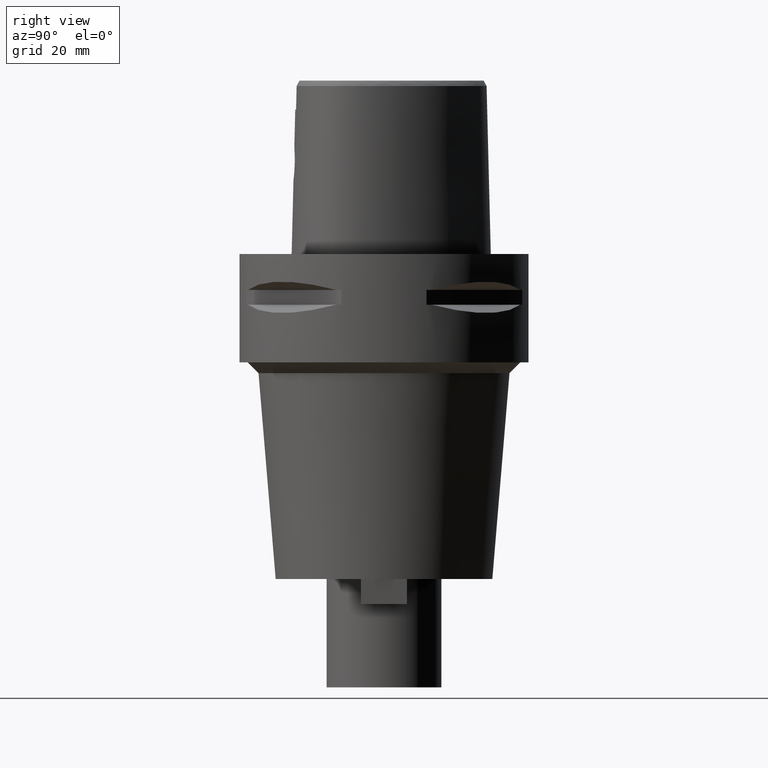
[diagram: clean part render]
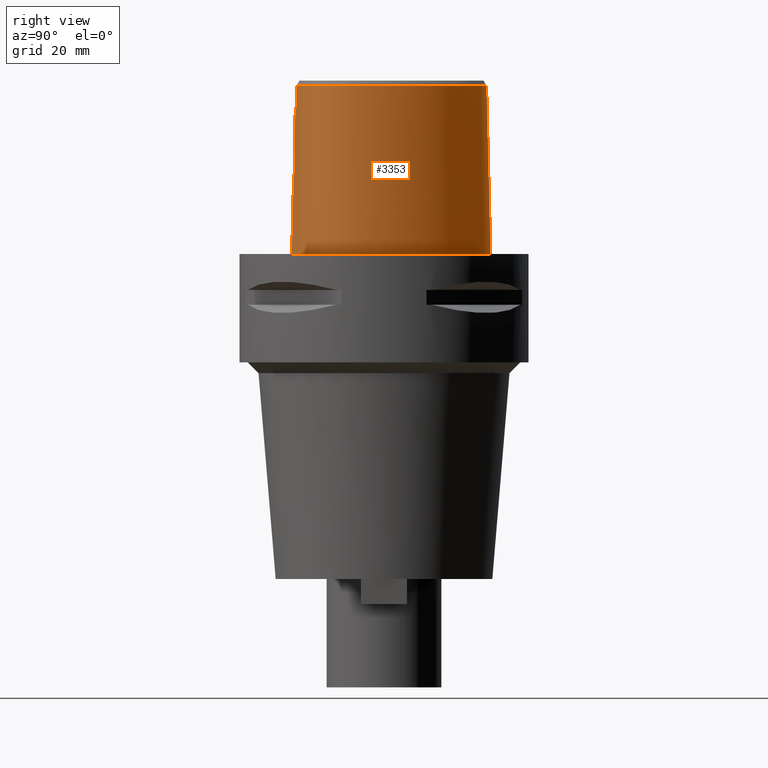
[diagram: same view with one face highlighted and labeled with its STEP entity id]
A machine part, right view. The second image highlights one B-rep face of the part: STEP entity #3353.
In plain terms, the highlighted face is a freeform B-spline surface patch.
Its self-contained STEP definition (entity closure, byte-faithful):
#130=CARTESIAN_POINT('',(4.472216720977E0,-2.420009030094E1,4.652069014669E1));
#140=CARTESIAN_POINT('',(-1.300493308120E-11,2.841206021535E1,
4.652071719451E1));
#141=CARTESIAN_POINT('',(4.537490213628E-1,2.841206021535E1,4.652071719450E1));
#142=CARTESIAN_POINT('',(1.359739333895E0,2.836561700399E1,4.652068492419E1));
#143=CARTESIAN_POINT('',(2.798416793316E0,2.814377461717E1,4.652072027706E1));
#144=CARTESIAN_POINT('',(4.307887639499E0,2.775346072855E1,4.652071723335E1));
#145=CARTESIAN_POINT('',(5.924869929827E0,2.716263044308E1,4.652072183319E1));
#146=CARTESIAN_POINT('',(7.606376726197E0,2.635846393509E1,4.652071705165E1));
#147=CARTESIAN_POINT('',(9.250372014650E0,2.538962292784E1,4.652072163652E1));
#148=CARTESIAN_POINT('',(1.088560491412E1,2.424857119092E1,4.652071905169E1));
#149=CARTESIAN_POINT('',(1.252185350330E1,2.292325989186E1,4.652072481974E1));
#150=CARTESIAN_POINT('',(1.417180752101E1,2.139586755219E1,4.652071606140E1));
#151=CARTESIAN_POINT('',(1.592374388296E1,1.954881059155E1,4.652071986469E1));
#152=CARTESIAN_POINT('',(1.778068836460E1,1.730764528431E1,4.652070834577E1));
#153=CARTESIAN_POINT('',(1.973862266516E1,1.456620010831E1,4.652071797701E1));
#154=CARTESIAN_POINT('',(2.161193685354E1,1.146764016300E1,4.652071565102E1));
#155=CARTESIAN_POINT('',(2.320306411494E1,8.305545696281E0,4.652071754653E1));
#156=CARTESIAN_POINT('',(2.439273893495E1,5.429171501733E0,4.652072067189E1));
#157=CARTESIAN_POINT('',(2.525400230633E1,2.867289822812E0,4.652071708657E1));
#158=CARTESIAN_POINT('',(2.587058895892E1,5.356714346136E-1,4.652071524526E1));
#159=CARTESIAN_POINT('',(2.628986553808E1,-1.616722991159E0,4.652071995117E1));
#160=CARTESIAN_POINT('',(2.654226288817E1,-3.645874536726E0,4.652071251050E1));
#161=CARTESIAN_POINT('',(2.664069955943E1,-5.588996615923E0,4.652072284657E1));
#162=CARTESIAN_POINT('',(2.658231647953E1,-7.487839499206E0,4.652071787861E1));
#163=CARTESIAN_POINT('',(2.636242864393E1,-9.277335918253E0,4.652071674685E1));
#164=CARTESIAN_POINT('',(2.600546970369E1,-1.087971050716E1,4.652072175201E1));
#165=CARTESIAN_POINT('',(2.553598679842E1,-1.230721928929E1,4.652071313457E1));
#166=CARTESIAN_POINT('',(2.496411661943E1,-1.359437090237E1,4.652075888368E1));
#167=CARTESIAN_POINT('',(2.428343664836E1,-1.477858436888E1,4.652070986822E1));
#168=CARTESIAN_POINT('',(2.346248453319E1,-1.591632656551E1,4.652072011288E1));
#169=CARTESIAN_POINT('',(2.246581338304E1,-1.703985358332E1,4.652071692565E1));
#170=CARTESIAN_POINT('',(2.126821125574E1,-1.814765548893E1,4.652072040874E1));
#171=CARTESIAN_POINT('',(1.983956133964E1,-1.923330405129E1,4.652072026418E1));
#172=CARTESIAN_POINT('',(1.823083362510E1,-2.023730442068E1,4.652071810262E1));
#173=CARTESIAN_POINT('',(1.650513375439E1,-2.112762786541E1,4.652071766772E1));
#174=CARTESIAN_POINT('',(1.462294012880E1,-2.192950778602E1,4.652071724727E1));
#175=CARTESIAN_POINT('',(1.256100400051E1,-2.264450389677E1,4.652072051589E1));
#176=CARTESIAN_POINT('',(1.025773522757E1,-2.327676388824E1,4.652070395409E1));
#177=CARTESIAN_POINT('',(7.624517635560E0,-2.381786584128E1,4.652074908391E1));
#178=CARTESIAN_POINT('',(5.565499563370E0,-2.409543509559E1,4.652064983366E1));
#179=CARTESIAN_POINT('',(4.472216720977E0,-2.420009030094E1,4.652069014669E1));
#255=DIRECTION('',(1.388127457203E-9,-2.499239851702E-2,-9.996876412242E-1));
#256=VECTOR('',#255,1.045326522127E1);
#257=CARTESIAN_POINT('',(-1.451045074373E-8,-2.457504746727E1,
4.000000005214E1));
#258=LINE('',#257,#256);
#276=CARTESIAN_POINT('',(-1.778692822600E-12,-2.506378435149E1,2.045E1));
#281=DIRECTION('',(-6.125829354769E-13,-2.499051295404E-2,-9.996876883619E-1));
#282=VECTOR('',#281,2.045638876829E1);
#283=CARTESIAN_POINT('',(-1.778692822600E-12,-2.506378435149E1,2.045E1));
#284=LINE('',#283,#282);
#304=CARTESIAN_POINT('',(-1.430992750353E-11,-2.5575E1,7.197945942986E-14));
#305=CARTESIAN_POINT('',(1.226267310008E0,-2.5575E1,7.197945942986E-14));
#306=CARTESIAN_POINT('',(3.621626679634E0,-2.548420083228E1,
-3.340578337814E-14));
#307=CARTESIAN_POINT('',(7.094522645363E0,-2.509118798312E1,0.E0));
#308=CARTESIAN_POINT('',(1.029320393422E1,-2.447674119434E1,0.E0));
#309=CARTESIAN_POINT('',(1.316830366448E1,-2.368658642280E1,0.E0));
#310=CARTESIAN_POINT('',(1.569756798499E1,-2.276535287200E1,0.E0));
#311=CARTESIAN_POINT('',(1.789001133716E1,-2.175166800221E1,0.E0));
#312=CARTESIAN_POINT('',(1.977188988408E1,-2.067442038523E1,0.E0));
#313=CARTESIAN_POINT('',(2.137528803232E1,-1.955428174846E1,0.E0));
#314=CARTESIAN_POINT('',(2.273475815452E1,-1.840306974533E1,0.E0));
#315=CARTESIAN_POINT('',(2.388112745601E1,-1.722650932174E1,0.E0));
#316=CARTESIAN_POINT('',(2.483875686230E1,-1.602841784064E1,0.E0));
#317=CARTESIAN_POINT('',(2.563594678621E1,-1.479733412336E1,0.E0));
#318=CARTESIAN_POINT('',(2.630231433085E1,-1.349225912510E1,0.E0));
#319=CARTESIAN_POINT('',(2.685985398762E1,-1.206629730907E1,0.E0));
#320=CARTESIAN_POINT('',(2.730580994310E1,-1.048351470006E1,0.E0));
#321=CARTESIAN_POINT('',(2.762257833371E1,-8.731081940864E0,0.E0));
#322=CARTESIAN_POINT('',(2.779074221452E1,-6.781137455186E0,0.E0));
#323=CARTESIAN_POINT('',(2.778224836625E1,-4.611565185275E0,0.E0));
#324=CARTESIAN_POINT('',(2.756318944422E1,-2.204123591672E0,0.E0));
#325=CARTESIAN_POINT('',(2.709515794285E1,4.491411091432E-1,0.E0));
#326=CARTESIAN_POINT('',(2.634085131059E1,3.335346125171E0,0.E0));
#327=CARTESIAN_POINT('',(2.527068452380E1,6.416678834474E0,0.E0));
#328=CARTESIAN_POINT('',(2.387689011732E1,9.615258310560E0,0.E0));
#329=CARTESIAN_POINT('',(2.217741715327E1,1.282851522004E1,0.E0));
#330=CARTESIAN_POINT('',(2.024214261184E1,1.590456751041E1,0.E0));
#331=CARTESIAN_POINT('',(1.816829982132E1,1.870672171589E1,0.E0));
#332=CARTESIAN_POINT('',(1.603485463220E1,2.116984668375E1,0.E0));
#333=CARTESIAN_POINT('',(1.391322503618E1,2.326170700258E1,0.E0));
#334=CARTESIAN_POINT('',(1.185104298907E1,2.498915286116E1,0.E0));
#335=CARTESIAN_POINT('',(9.877468034097E0,2.637866284459E1,0.E0));
#336=CARTESIAN_POINT('',(8.004575549759E0,2.746752065886E1,0.E0));
#337=CARTESIAN_POINT('',(6.233260248055E0,2.829428471163E1,0.E0));
#338=CARTESIAN_POINT('',(4.557437940904E0,2.889428332895E1,0.E0));
#339=CARTESIAN_POINT('',(2.966279271192E0,2.929725777520E1,0.E0));
#340=CARTESIAN_POINT('',(1.450330499919E0,2.952644702213E1,
-3.040012163461E-14));
#341=CARTESIAN_POINT('',(4.765643349690E-1,2.957499999999E1,
6.550315845288E-14));
#342=CARTESIAN_POINT('',(3.442285893376E-11,2.957499999999E1,
6.550315845288E-14));
#347=CARTESIAN_POINT('',(3.442285893376E-11,2.957499999999E1,
6.550315845288E-14));
#385=CARTESIAN_POINT('',(-1.430992750353E-11,-2.5575E1,7.197945942986E-14));
#1048=CARTESIAN_POINT('',(-1.778692822600E-12,-2.506378435149E1,2.045E1));
#1049=CARTESIAN_POINT('',(3.954072385966E-1,-2.506378435149E1,2.045E1));
#1050=CARTESIAN_POINT('',(1.186753459267E0,-2.505127021271E1,2.055377441387E1));
#1051=CARTESIAN_POINT('',(2.293901026105E0,-2.499899038356E1,2.101029884895E1));
#1052=CARTESIAN_POINT('',(3.249199742156E0,-2.492423366302E1,2.174038340004E1));
#1053=CARTESIAN_POINT('',(3.983109891139E0,-2.484333493048E1,2.269399437273E1));
#1054=CARTESIAN_POINT('',(4.444902099457E0,-2.477340454867E1,2.380604644136E1));
#1055=CARTESIAN_POINT('',(4.602189725522E0,-2.472804812745E1,2.499792083744E1));
#1056=CARTESIAN_POINT('',(4.446334752733E0,-2.471346400510E1,2.618704469361E1));
#1057=CARTESIAN_POINT('',(3.988616765538E0,-2.472738510881E1,2.729584248229E1));
#1058=CARTESIAN_POINT('',(3.258671858173E0,-2.476043868878E1,2.825013255838E1));
#1059=CARTESIAN_POINT('',(2.303887962671E0,-2.479896037678E1,2.898443751551E1));
#1060=CARTESIAN_POINT('',(1.191549157684E0,-2.482886762172E1,2.944549741629E1));
#1061=CARTESIAN_POINT('',(3.970274391534E-1,-2.483629963748E1,2.955E1));
#1062=CARTESIAN_POINT('',(1.372734075401E-14,-2.483629963748E1,2.955E1));
#1067=CARTESIAN_POINT('',(4.602926386879E0,-2.435121850030E1,4.000000005215E1));
#1068=CARTESIAN_POINT('',(4.588866899356E0,-2.433440433283E1,4.072434907413E1));
#1069=CARTESIAN_POINT('',(4.559961035626E0,-2.430022594202E1,4.217314077646E1));
#1070=CARTESIAN_POINT('',(4.516394065040E0,-2.424985529238E1,4.434670381198E1));
#1071=CARTESIAN_POINT('',(4.487210999458E0,-2.421685509515E1,4.579599754735E1));
#1072=CARTESIAN_POINT('',(4.472216720977E0,-2.420009030094E1,4.652069014669E1));
#1077=DIRECTION('',(1.019179897105E-12,2.499051293976E-2,-9.996876883622E-1));
#1078=VECTOR('',#1077,4.653525069487E1);
#1079=CARTESIAN_POINT('',(-1.300493308120E-11,2.841206021535E1,
4.652071719451E1));
#1080=LINE('',#1079,#1078);
#1084=CARTESIAN_POINT('',(4.602926386879E0,-2.435121850030E1,4.000000005215E1));
#1085=CARTESIAN_POINT('',(4.092927945188E0,-2.440134254990E1,4.000000005215E1));
#1086=CARTESIAN_POINT('',(3.071957838276E0,-2.448406989328E1,3.999999998262E1));
#1087=CARTESIAN_POINT('',(1.536621703767E0,-2.455890147704E1,3.999999998262E1));
#1088=CARTESIAN_POINT('',(5.124223333400E-1,-2.457504746727E1,
4.000000005214E1));
#1089=CARTESIAN_POINT('',(-1.451045074373E-8,-2.457504746727E1,
4.000000005214E1));
#1094=CARTESIAN_POINT('',(-1.451045074373E-8,-2.457504746727E1,
4.000000005214E1));
#1713=VERTEX_POINT('',#130);
#1714=VERTEX_POINT('',#1067);
#1718=CARTESIAN_POINT('',(-1.300493308120E-11,2.841206021535E1,
4.652071719451E1));
#1719=VERTEX_POINT('',#1718);
#1720=VERTEX_POINT('',#347);
#1721=VERTEX_POINT('',#385);
#1722=VERTEX_POINT('',#1094);
#1723=CARTESIAN_POINT('',(1.372734075387E-14,-2.483629963748E1,2.955E1));
#1724=VERTEX_POINT('',#1723);
#1725=VERTEX_POINT('',#276);
#3233=CARTESIAN_POINT('',(-8.532294279263E-1,-2.559082454055E1,
-9.304148619760E-1));
#3234=CARTESIAN_POINT('',(-8.462047032115E-1,-2.518772785339E1,
1.519677607894E1));
#3235=CARTESIAN_POINT('',(-8.391799784968E-1,-2.478463116624E1,
3.132396701986E1));
#3236=CARTESIAN_POINT('',(-8.321552537820E-1,-2.438153447908E1,
4.745115796078E1));
#3237=CARTESIAN_POINT('',(-5.689009027299E-1,-2.559577918747E1,
-9.304148619760E-1));
#3238=CARTESIAN_POINT('',(-5.642169905721E-1,-2.519264548638E1,
1.519677607894E1));
#3239=CARTESIAN_POINT('',(-5.595330784144E-1,-2.478951178528E1,
3.132396701986E1));
#3240=CARTESIAN_POINT('',(-5.548491662566E-1,-2.438637808419E1,
4.745115796078E1));
#3241=CARTESIAN_POINT('',(2.393561154827E0,-2.562160366833E1,
-9.304148619760E-1));
#3242=CARTESIAN_POINT('',(2.373865152778E0,-2.521827227246E1,1.519677607894E1));
#3243=CARTESIAN_POINT('',(2.354169150730E0,-2.481494087659E1,3.132396701986E1));
#3244=CARTESIAN_POINT('',(2.334473148681E0,-2.441160948072E1,4.745115796078E1));
#3245=CARTESIAN_POINT('',(6.695047937827E0,-2.526858195578E1,
-9.304148619760E-1));
#3246=CARTESIAN_POINT('',(6.639625055127E0,-2.486795305563E1,1.519677607894E1));
#3247=CARTESIAN_POINT('',(6.584202172427E0,-2.446732415547E1,3.132396701986E1));
#3248=CARTESIAN_POINT('',(6.528779289727E0,-2.406669525531E1,4.745115796078E1));
#3249=CARTESIAN_POINT('',(1.174634101736E1,-2.415815462025E1,
-9.304148619760E-1));
#3250=CARTESIAN_POINT('',(1.164093419894E1,-2.376831828593E1,1.519677607894E1));
#3251=CARTESIAN_POINT('',(1.153552738051E1,-2.337848195162E1,3.132396701986E1));
#3252=CARTESIAN_POINT('',(1.143012056209E1,-2.298864561730E1,4.745115796078E1));
#3253=CARTESIAN_POINT('',(1.530623779951E1,-2.298697011086E1,
-9.304148619760E-1));
#3254=CARTESIAN_POINT('',(1.515935276431E1,-2.261055589757E1,1.519677607894E1));
#3255=CARTESIAN_POINT('',(1.501246772912E1,-2.223414168428E1,3.132396701986E1));
#3256=CARTESIAN_POINT('',(1.486558269393E1,-2.185772747098E1,4.745115796078E1));
#3257=CARTESIAN_POINT('',(1.856135208858E1,-2.147443747539E1,
-9.304148619760E-1));
#3258=CARTESIAN_POINT('',(1.836798839422E1,-2.111923998531E1,1.519677607894E1));
#3259=CARTESIAN_POINT('',(1.817462469986E1,-2.076404249523E1,3.132396701986E1));
#3260=CARTESIAN_POINT('',(1.798126100550E1,-2.040884500515E1,4.745115796078E1));
#3261=CARTESIAN_POINT('',(2.143542293833E1,-1.961750339902E1,
-9.304148619760E-1));
#3262=CARTESIAN_POINT('',(2.119046229700E1,-1.929498354514E1,1.519677607894E1));
#3263=CARTESIAN_POINT('',(2.094550165567E1,-1.897246369125E1,3.132396701986E1));
#3264=CARTESIAN_POINT('',(2.070054101434E1,-1.864994383737E1,4.745115796078E1));
#3265=CARTESIAN_POINT('',(2.344929528849E1,-1.778045352621E1,
-9.304148619760E-1));
#3266=CARTESIAN_POINT('',(2.315870193773E1,-1.749879683230E1,1.519677607894E1));
#3267=CARTESIAN_POINT('',(2.286810858698E1,-1.721714013839E1,3.132396701986E1));
#3268=CARTESIAN_POINT('',(2.257751523622E1,-1.693548344448E1,4.745115796078E1));
#3269=CARTESIAN_POINT('',(2.479336082226E1,-1.613554023023E1,
-9.304148619760E-1));
#3270=CARTESIAN_POINT('',(2.446791210862E1,-1.589630644790E1,1.519677607894E1));
#3271=CARTESIAN_POINT('',(2.414246339498E1,-1.565707266558E1,3.132396701986E1));
#3272=CARTESIAN_POINT('',(2.381701468134E1,-1.541783888326E1,4.745115796078E1));
#3273=CARTESIAN_POINT('',(2.565830881E1,-1.481383149842E1,-9.304148619760E-1));
#3274=CARTESIAN_POINT('',(2.530843701245E1,-1.461183292168E1,1.519677607894E1));
#3275=CARTESIAN_POINT('',(2.495856521490E1,-1.440983434494E1,3.132396701986E1));
#3276=CARTESIAN_POINT('',(2.460869341735E1,-1.420783576820E1,4.745115796078E1));
#3277=CARTESIAN_POINT('',(2.637046815424E1,-1.340391020207E1,
-9.304148619760E-1));
#3278=CARTESIAN_POINT('',(2.600056126553E1,-1.324168024115E1,1.519677607894E1));
#3279=CARTESIAN_POINT('',(2.563065437682E1,-1.307945028023E1,3.132396701986E1));
#3280=CARTESIAN_POINT('',(2.526074748811E1,-1.291722031931E1,4.745115796078E1));
#3281=CARTESIAN_POINT('',(2.712297208911E1,-1.141745865805E1,
-9.304148619760E-1));
#3282=CARTESIAN_POINT('',(2.673375355544E1,-1.130662577271E1,1.519677607894E1));
#3283=CARTESIAN_POINT('',(2.634453502177E1,-1.119579288737E1,3.132396701986E1));
#3284=CARTESIAN_POINT('',(2.595531648810E1,-1.108496000203E1,4.745115796078E1));
#3285=CARTESIAN_POINT('',(2.770696776862E1,-8.754869102049E0,
-9.304148619760E-1));
#3286=CARTESIAN_POINT('',(2.730517711201E1,-8.703986958195E0,1.519677607894E1));
#3287=CARTESIAN_POINT('',(2.690338645539E1,-8.653104814341E0,3.132396701986E1));
#3288=CARTESIAN_POINT('',(2.650159579878E1,-8.602222670487E0,4.745115796078E1));
#3289=CARTESIAN_POINT('',(2.787808444065E1,-5.337383713826E0,
-9.304148619760E-1));
#3290=CARTESIAN_POINT('',(2.747379235835E1,-5.347524340840E0,1.519677607894E1));
#3291=CARTESIAN_POINT('',(2.706950027605E1,-5.357664967854E0,3.132396701986E1));
#3292=CARTESIAN_POINT('',(2.666520819375E1,-5.367805594868E0,4.745115796078E1));
#3293=CARTESIAN_POINT('',(2.756041893194E1,-1.762105662306E0,
-9.304148619760E-1));
#3294=CARTESIAN_POINT('',(2.716099283396E1,-1.823107515679E0,1.519677607894E1));
#3295=CARTESIAN_POINT('',(2.676156673598E1,-1.884109369053E0,3.132396701986E1));
#3296=CARTESIAN_POINT('',(2.636214063800E1,-1.945111222426E0,4.745115796078E1));
#3297=CARTESIAN_POINT('',(2.679474626706E1,1.906447389808E0,
-9.304148619760E-1));
#3298=CARTESIAN_POINT('',(2.640443211168E1,1.802817633141E0,1.519677607894E1));
#3299=CARTESIAN_POINT('',(2.601411795630E1,1.699187876475E0,3.132396701986E1));
#3300=CARTESIAN_POINT('',(2.562380380093E1,1.595558119809E0,4.745115796078E1));
#3301=CARTESIAN_POINT('',(2.523075707077E1,6.836210434206E0,
-9.304148619760E-1));
#3302=CARTESIAN_POINT('',(2.485610450837E1,6.683875407970E0,1.519677607894E1));
#3303=CARTESIAN_POINT('',(2.448145194596E1,6.531540381734E0,3.132396701986E1));
#3304=CARTESIAN_POINT('',(2.410679938356E1,6.379205355498E0,4.745115796078E1));
#3305=CARTESIAN_POINT('',(2.235908248605E1,1.290902243534E1,
-9.304148619760E-1));
#3306=CARTESIAN_POINT('',(2.200846679427E1,1.270659188939E1,1.519677607894E1));
#3307=CARTESIAN_POINT('',(2.165785110248E1,1.250416134343E1,3.132396701986E1));
#3308=CARTESIAN_POINT('',(2.130723541069E1,1.230173079748E1,4.745115796078E1));
#3309=CARTESIAN_POINT('',(1.777103259375E1,1.953703865062E1,
-9.304148619760E-1));
#3310=CARTESIAN_POINT('',(1.745811250487E1,1.927961870653E1,1.519677607894E1));
#3311=CARTESIAN_POINT('',(1.714519241599E1,1.902219876245E1,3.132396701986E1));
#3312=CARTESIAN_POINT('',(1.683227232710E1,1.876477881836E1,4.745115796078E1));
#3313=CARTESIAN_POINT('',(1.323332856929E1,2.406149250633E1,
-9.304148619760E-1));
#3314=CARTESIAN_POINT('',(1.296695399617E1,2.375598697986E1,1.519677607894E1));
#3315=CARTESIAN_POINT('',(1.270057942306E1,2.345048145338E1,3.132396701986E1));
#3316=CARTESIAN_POINT('',(1.243420484994E1,2.314497592691E1,4.745115796078E1));
#3317=CARTESIAN_POINT('',(9.316733122304E0,2.681182151464E1,
-9.304148619760E-1));
#3318=CARTESIAN_POINT('',(9.105791383652E0,2.646675901090E1,1.519677607894E1));
#3319=CARTESIAN_POINT('',(8.894849644999E0,2.612169650717E1,3.132396701986E1));
#3320=CARTESIAN_POINT('',(8.683907906346E0,2.577663400344E1,4.745115796078E1));
#3321=CARTESIAN_POINT('',(6.271543174258E0,2.837237221414E1,
-9.304148619760E-1));
#3322=CARTESIAN_POINT('',(6.114741863528E0,2.799897518993E1,1.519677607894E1));
#3323=CARTESIAN_POINT('',(5.957940552799E0,2.762557816573E1,3.132396701986E1));
#3324=CARTESIAN_POINT('',(5.801139242069E0,2.725218114153E1,4.745115796078E1));
#3325=CARTESIAN_POINT('',(3.154109048585E0,2.936302094322E1,
-9.304148619760E-1));
#3326=CARTESIAN_POINT('',(3.067023364638E0,2.896669959419E1,1.519677607894E1));
#3327=CARTESIAN_POINT('',(2.979937680692E0,2.857037824516E1,3.132396701986E1));
#3328=CARTESIAN_POINT('',(2.892851996746E0,2.817405689614E1,4.745115796078E1));
#3329=CARTESIAN_POINT('',(7.484115212949E-1,2.963215902882E1,
-9.304148619760E-1));
#3330=CARTESIAN_POINT('',(7.265635576020E-1,2.922802187917E1,1.519677607894E1));
#3331=CARTESIAN_POINT('',(7.047155939090E-1,2.882388472953E1,3.132396701986E1));
#3332=CARTESIAN_POINT('',(6.828676302160E-1,2.841974757988E1,4.745115796078E1));
#3333=CARTESIAN_POINT('',(-6.060951007708E-1,2.958848806087E1,
-9.304148619760E-1));
#3334=CARTESIAN_POINT('',(-5.886350931458E-1,2.918561912110E1,
1.519677607894E1));
#3335=CARTESIAN_POINT('',(-5.711750855208E-1,2.878275018133E1,
3.132396701986E1));
#3336=CARTESIAN_POINT('',(-5.537150778959E-1,2.837988124155E1,
4.745115796078E1));
#3337=CARTESIAN_POINT('',(-9.090099851175E-1,2.956867552558E1,
-9.304148619760E-1));
#3338=CARTESIAN_POINT('',(-8.826520933733E-1,2.916640526532E1,
1.519677607894E1));
#3339=CARTESIAN_POINT('',(-8.562942016292E-1,2.876413500507E1,
3.132396701986E1));
#3340=CARTESIAN_POINT('',(-8.299363098850E-1,2.836186474482E1,
4.745115796078E1));
#3341=B_SPLINE_SURFACE_WITH_KNOTS('',3,3,((#3233,#3234,#3235,#3236),(#3237,
#3238,#3239,#3240),(#3241,#3242,#3243,#3244),(#3245,#3246,#3247,#3248),(#3249,
#3250,#3251,#3252),(#3253,#3254,#3255,#3256),(#3257,#3258,#3259,#3260),(#3261,
#3262,#3263,#3264),(#3265,#3266,#3267,#3268),(#3269,#3270,#3271,#3272),(#3273,
#3274,#3275,#3276),(#3277,#3278,#3279,#3280),(#3281,#3282,#3283,#3284),(#3285,
#3286,#3287,#3288),(#3289,#3290,#3291,#3292),(#3293,#3294,#3295,#3296),(#3297,
#3298,#3299,#3300),(#3301,#3302,#3303,#3304),(#3305,#3306,#3307,#3308),(#3309,
#3310,#3311,#3312),(#3313,#3314,#3315,#3316),(#3317,#3318,#3319,#3320),(#3321,
#3322,#3323,#3324),(#3325,#3326,#3327,#3328),(#3329,#3330,#3331,#3332),(#3333,
#3334,#3335,#3336),(#3337,#3338,#3339,#3340)),.UNSPECIFIED.,.F.,.F.,.F.,(4,1,1,
1,1,1,1,1,1,1,1,1,1,1,1,1,1,1,1,1,1,1,1,1,4),(4,4),(-8.851417483046E-3,0.E0,
8.333333333343E-2,1.250000000001E-1,1.666666666668E-1,2.083333333333E-1,2.5E-1,
2.916666666667E-1,3.125E-1,3.333333333333E-1,3.541666666666E-1,
3.749999999999E-1,4.166666666666E-1,4.583333333332E-1,4.999999999999E-1,
5.416666666665E-1,5.833333333331E-1,6.666666666665E-1,7.499999999997E-1,
8.333333333330E-1,8.749999999996E-1,9.166666666663E-1,9.583333333329E-1,1.E0,
1.012009199036E0),(-2.739262202484E-9,1.000000139703E0),.UNSPECIFIED.);
#3342=ORIENTED_EDGE('',*,*,#2658,.F.);
#3343=ORIENTED_EDGE('',*,*,#2642,.F.);
#3344=ORIENTED_EDGE('',*,*,#3225,.T.);
#3345=ORIENTED_EDGE('',*,*,#2638,.F.);
#3347=ORIENTED_EDGE('',*,*,#3346,.F.);
#3348=ORIENTED_EDGE('',*,*,#1939,.T.);
#3349=ORIENTED_EDGE('',*,*,#2231,.F.);
#3350=ORIENTED_EDGE('',*,*,#2632,.T.);
#3351=EDGE_LOOP('',(#3342,#3343,#3344,#3345,#3347,#3348,#3349,#3350));
#3352=FACE_OUTER_BOUND('',#3351,.F.);
#180=B_SPLINE_CURVE_WITH_KNOTS('',3,(#140,#141,#142,#143,#144,#145,#146,#147,
#148,#149,#150,#151,#152,#153,#154,#155,#156,#157,#158,#159,#160,#161,#162,#163,
#164,#165,#166,#167,#168,#169,#170,#171,#172,#173,#174,#175,#176,#177,#178,
#179),.UNSPECIFIED.,.F.,.F.,(4,1,1,1,1,1,1,1,1,1,1,1,1,1,1,1,1,1,1,1,1,1,1,1,1,
1,1,1,1,1,1,1,1,1,1,1,1,4),(0.E0,2.702702702703E-2,5.405405405405E-2,
8.108108108108E-2,1.081081081081E-1,1.351351351351E-1,1.621621621622E-1,
1.891891891892E-1,2.162162162162E-1,2.432432432432E-1,2.702702702703E-1,
2.972972972973E-1,3.243243243243E-1,3.513513513514E-1,3.783783783784E-1,
4.054054054054E-1,4.324324324324E-1,4.594594594595E-1,4.864864864865E-1,
5.135135135135E-1,5.405405405405E-1,5.675675675676E-1,5.945945945946E-1,
6.216216216216E-1,6.486486486486E-1,6.756756756757E-1,7.027027027027E-1,
7.297297297297E-1,7.567567567568E-1,7.837837837838E-1,8.108108108108E-1,
8.378378378378E-1,8.648648648649E-1,8.918918918919E-1,9.189189189189E-1,
9.459459459459E-1,9.729729729730E-1,1.E0),.UNSPECIFIED.);
#343=B_SPLINE_CURVE_WITH_KNOTS('',3,(#304,#305,#306,#307,#308,#309,#310,#311,
#312,#313,#314,#315,#316,#317,#318,#319,#320,#321,#322,#323,#324,#325,#326,#327,
#328,#329,#330,#331,#332,#333,#334,#335,#336,#337,#338,#339,#340,#341,#342),
.UNSPECIFIED.,.F.,.F.,(4,1,1,1,1,1,1,1,1,1,1,1,1,1,1,1,1,1,1,1,1,1,1,1,1,1,1,1,
1,1,1,1,1,1,1,1,4),(0.E0,2.777777777778E-2,5.555555555556E-2,8.333333333333E-2,
1.111111111111E-1,1.388888888889E-1,1.666666666667E-1,1.944444444444E-1,
2.222222222222E-1,2.5E-1,2.777777777778E-1,3.055555555556E-1,3.333333333333E-1,
3.611111111111E-1,3.888888888889E-1,4.166666666667E-1,4.444444444444E-1,
4.722222222222E-1,5.E-1,5.277777777778E-1,5.555555555556E-1,5.833333333333E-1,
6.111111111111E-1,6.388888888889E-1,6.666666666667E-1,6.944444444444E-1,
7.222222222222E-1,7.5E-1,7.777777777778E-1,8.055555555556E-1,8.333333333333E-1,
8.611111111111E-1,8.888888888889E-1,9.166666666667E-1,9.444444444444E-1,
9.722222222222E-1,1.E0),.UNSPECIFIED.);
#1063=B_SPLINE_CURVE_WITH_KNOTS('',3,(#1048,#1049,#1050,#1051,#1052,#1053,#1054,
#1055,#1056,#1057,#1058,#1059,#1060,#1061,#1062),.UNSPECIFIED.,.F.,.F.,(4,1,1,1,
1,1,1,1,1,1,1,1,4),(0.E0,8.333333333333E-2,1.666666666667E-1,2.5E-1,
3.333333333333E-1,4.166666666667E-1,5.E-1,5.833333333333E-1,6.666666666667E-1,
7.5E-1,8.333333333333E-1,9.166666666667E-1,1.E0),.UNSPECIFIED.);
#1073=B_SPLINE_CURVE_WITH_KNOTS('',3,(#1067,#1068,#1069,#1070,#1071,#1072),
.UNSPECIFIED.,.F.,.F.,(4,1,1,4),(0.E0,3.333333333333E-1,6.666666666667E-1,1.E0),
.UNSPECIFIED.);
#1090=B_SPLINE_CURVE_WITH_KNOTS('',3,(#1084,#1085,#1086,#1087,#1088,#1089),
.UNSPECIFIED.,.F.,.F.,(4,1,1,4),(0.E0,3.333333333333E-1,6.666666666667E-1,1.E0),
.UNSPECIFIED.);
#1939=EDGE_CURVE('',#1714,#1713,#1073,.T.);
#2231=EDGE_CURVE('',#1719,#1713,#180,.T.);
#2632=EDGE_CURVE('',#1719,#1720,#1080,.T.);
#2638=EDGE_CURVE('',#1722,#1724,#258,.T.);
#2642=EDGE_CURVE('',#1725,#1721,#284,.T.);
#2658=EDGE_CURVE('',#1721,#1720,#343,.T.);
#3225=EDGE_CURVE('',#1725,#1724,#1063,.T.);
#3346=EDGE_CURVE('',#1714,#1722,#1090,.T.);
#3353=ADVANCED_FACE('',(#3352),#3341,.T.);